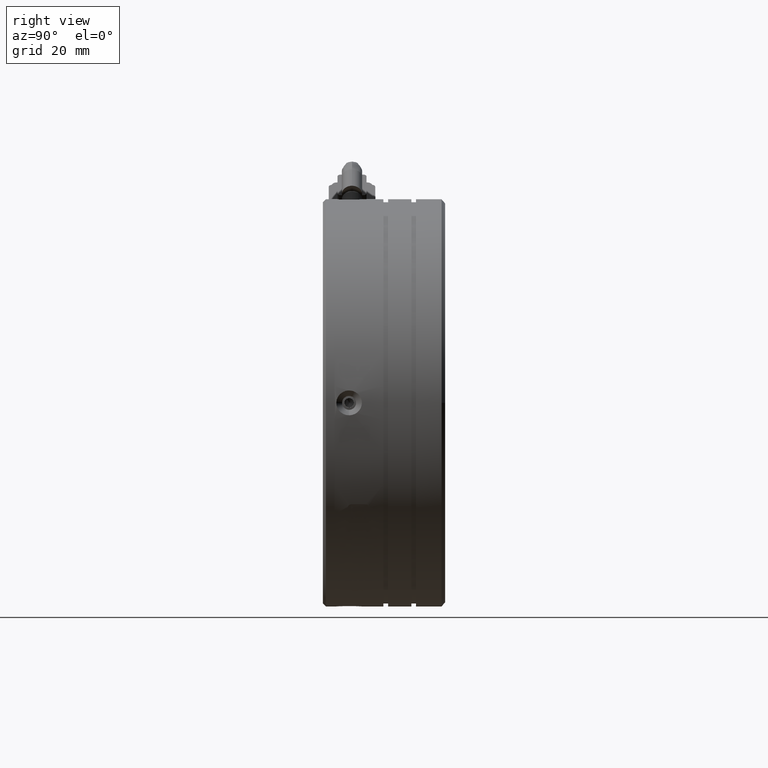
[diagram: clean part render]
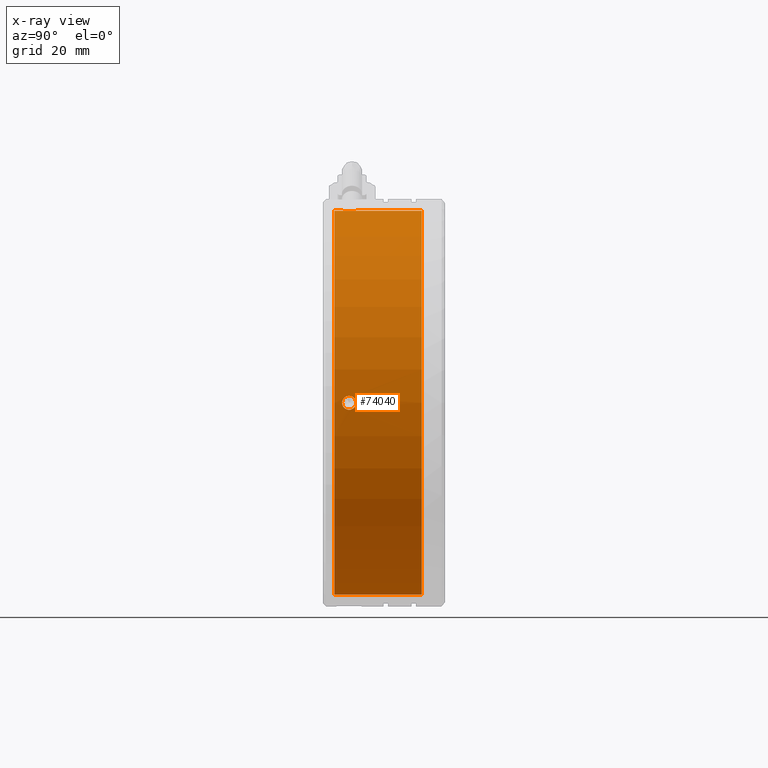
[diagram: x-ray — body ghosted, one internal face saturated and labeled with its STEP entity id]
A machine part, right view, then the same camera in x-ray: the body is ghosted and one INTERNAL B-rep face — a face not visible from any outside direction — is saturated and labeled: STEP entity #74040.
In plain terms, the highlighted cylindrical surface (partial cylindrical patch) has radius 33 mm, axis along (-0, -1, -0).
Its self-contained STEP definition (entity closure, byte-faithful):
#239 = CARTESIAN_POINT ( 'NONE',  ( 30.26327966126859100, 0.4931344724992205400, -1.168785520655095700 ) ) ;
#304 = CARTESIAN_POINT ( 'NONE',  ( 30.26210358039565000, 0.8072713351086959800, 1.200000000000092300 ) ) ;
#530 = CARTESIAN_POINT ( 'NONE',  ( 30.26328206748696200, 0.4928482414054432000, 1.168722034054881400 ) ) ;
#595 = CARTESIAN_POINT ( 'NONE',  ( 30.27591459152081700, 1.768328481776676000, -0.7358360129737872000 ) ) ;
#1208 = CARTESIAN_POINT ( 'NONE',  ( -2.716071020391490200, 13.30727133510869800, -1.131636017531745300E-015 ) ) ;
#1279 = CARTESIAN_POINT ( 'NONE',  ( -2.716071020391486200, -13.32601881678534500, 33.00000000000003600 ) ) ;
#2878 = CARTESIAN_POINT ( 'NONE',  ( -2.400116378680400100, 1.975421891839071600, -32.99880286288897900 ) ) ;
#4090 = ORIENTED_EDGE ( 'NONE', *, *, #42616, .F. ) ;
#5450 = ORIENTED_EDGE ( 'NONE', *, *, #56728, .T. ) ;
#5659 = CARTESIAN_POINT ( 'NONE',  ( -2.557591869066220300, 2.007271335108683300, 33.00000000000003600 ) ) ;
#6030 = CARTESIAN_POINT ( 'NONE',  ( -1.667743459670195400, 0.2027778442646973000, -32.98339889650164700 ) ) ;
#6638 = EDGE_CURVE ( 'NONE', #30974, #55099, #83554, .T. ) ;
#6996 = CARTESIAN_POINT ( 'NONE',  ( 30.27017137514495800, 0.06941566001254349800, -0.9592045269286991700 ) ) ;
#7060 = CARTESIAN_POINT ( 'NONE',  ( 30.26210358039565700, 0.9658260916596472800, 1.200000000000092500 ) ) ;
#7278 = CARTESIAN_POINT ( 'NONE',  ( 30.26210358039565000, 0.8072713351086959800, 1.200000000000092300 ) ) ;
#7355 = CARTESIAN_POINT ( 'NONE',  ( 30.26733570743430200, 1.412458215402521800, -1.048103961760978000 ) ) ;
#7953 = DIRECTION ( 'NONE',  ( 0.0000000000000000000, 0.0000000000000000000, -1.000000000000000000 ) ) ;
#9040 = EDGE_CURVE ( 'NONE', #12694, #35938, #22865, .T. ) ;
#9361 = ORIENTED_EDGE ( 'NONE', *, *, #53622, .F. ) ;
#9578 = CARTESIAN_POINT ( 'NONE',  ( -2.716071020391490200, 2.007271335108682800, -33.00000000000003600 ) ) ;
#9597 = CARTESIAN_POINT ( 'NONE',  ( -1.516071020391503500, 0.8072713351086959800, 32.97817460078714900 ) ) ;
#10244 = FACE_OUTER_BOUND ( 'NONE', #56417, .T. ) ;
#12694 = VERTEX_POINT ( 'NONE', #85382 ) ;
#12786 = CARTESIAN_POINT ( 'NONE',  ( -1.516071020391504000, 0.6487923480182277200, -32.97817460078713500 ) ) ;
#13155 = B_SPLINE_CURVE_WITH_KNOTS ( 'NONE', 3,
 ( #52544, #5659, #59260, #19077, #66000, #25874, #72756, #32582, #79547, #39364 ),
 .UNSPECIFIED., .F., .F.,
 ( 4, 2, 2, 2, 4 ),
 ( 0.0000000000000000000, 0.0004686863137177276400, 0.0009373726274354557100, 0.001406058941153183800, 0.001874745254870911800 ),
 .UNSPECIFIED. ) ;
#13266 = CARTESIAN_POINT ( 'NONE',  ( -1.516071020391503500, 0.8072713351086959800, 32.97817460078714900 ) ) ;
#13613 = VECTOR ( 'NONE', #73142, 1000.000000000000000 ) ;
#13730 = CARTESIAN_POINT ( 'NONE',  ( 30.27871735660705700, -0.2413654639475856500, -0.6039761071244909000 ) ) ;
#13793 = CARTESIAN_POINT ( 'NONE',  ( 30.26732810195379700, 1.412026036177376900, 1.048338358202600500 ) ) ;
#14069 = CARTESIAN_POINT ( 'NONE',  ( 30.26210358039565300, 0.9658260328664218800, -1.199999999999962000 ) ) ;
#14361 = EDGE_CURVE ( 'NONE', #61181, #58754, #66506, .T. ) ;
#16302 = CARTESIAN_POINT ( 'NONE',  ( -1.547254035345357200, 0.4932874447166579200, 32.97934946666536100 ) ) ;
#19077 = CARTESIAN_POINT ( 'NONE',  ( -2.111579069174067700, 1.855750477904867200, 32.99478280426479400 ) ) ;
#19255 = CARTESIAN_POINT ( 'NONE',  ( -2.716071020391490200, -13.32601881678534500, -33.00000000000003600 ) ) ;
#20469 = CARTESIAN_POINT ( 'NONE',  ( 30.28392509849339800, -0.3926219341999274100, -0.1573320265075288700 ) ) ;
#20527 = CARTESIAN_POINT ( 'NONE',  ( 30.27586556915116500, 1.766502041763538400, 0.7378216404815718400 ) ) ;
#20660 = CARTESIAN_POINT ( 'NONE',  ( -2.716071020391490200, -1.692728664891304500, -33.00000000000003600 ) ) ;
#21029 = CIRCLE ( 'NONE', #83221, 33.00000000000003600 ) ;
#21602 = B_SPLINE_CURVE_WITH_KNOTS ( 'NONE', 3,
 ( #73828, #26943, #239, #47159, #6996, #53892, #13730, #60598, #20469, #67335, #27237, #74110, #33918, #80870, #40698, #530, #47452, #7278 ),
 .UNSPECIFIED., .F., .F.,
 ( 4, 2, 2, 2, 2, 2, 2, 2, 4 ),
 ( 0.003751279220462299200, 0.004220189296893438700, 0.004689099373324577400, 0.005158009449755716900, 0.005626919526186855600, 0.006095829602617994200, 0.006564739679049134600, 0.007033649755480273300, 0.007502559831911412800 ),
 .UNSPECIFIED. ) ;
#22275 = ORIENTED_EDGE ( 'NONE', *, *, #68920, .F. ) ;
#22865 = B_SPLINE_CURVE_WITH_KNOTS ( 'NONE', 3,
 ( #304, #7060, #47224, #13793, #60651, #20527, #67412, #27295, #74168, #33982, #80947, #40756, #595, #47511, #7355, #54254, #14069, #60945 ),
 .UNSPECIFIED., .F., .F.,
 ( 4, 2, 2, 2, 2, 2, 2, 2, 4 ),
 ( 0.0000000000000000000, 0.0004689099025577869600, 0.0009378198051155739300, 0.001406729707673361100, 0.001875639610231148300, 0.002344549512788935900, 0.002813459415346723500, 0.003282369317904511600, 0.003751279220462299200 ),
 .UNSPECIFIED. ) ;
#23056 = CARTESIAN_POINT ( 'NONE',  ( -1.756641551290326800, 0.06972329556116278700, 32.98623554602826900 ) ) ;
#24467 = B_SPLINE_CURVE_WITH_KNOTS ( 'NONE', 3,
 ( #9597, #49748, #16302, #63250, #23056, #69945, #29834, #76716, #36548, #83453 ),
 .UNSPECIFIED., .F., .F.,
 ( 4, 2, 2, 2, 4 ),
 ( 0.001874745254870911800, 0.002343432058373084500, 0.002812118861875257100, 0.003280805665377430200, 0.003749492468879603200 ),
 .UNSPECIFIED. ) ;
#25874 = CARTESIAN_POINT ( 'NONE',  ( -1.757166126515263800, 1.545501260155894400, 32.98625106334230100 ) ) ;
#26329 = ORIENTED_EDGE ( 'NONE', *, *, #62849, .F. ) ;
#26943 = CARTESIAN_POINT ( 'NONE',  ( 30.26210358039567400, 0.6487165785571291600, -1.199999999999799700 ) ) ;
#27217 = CARTESIAN_POINT ( 'NONE',  ( -2.716071020391486200, 13.30727133510869800, 33.00000000000003600 ) ) ;
#27237 = CARTESIAN_POINT ( 'NONE',  ( 30.28276453478510900, -0.3618086908596832000, 0.3129921246376338700 ) ) ;
#27295 = CARTESIAN_POINT ( 'NONE',  ( 30.28273918997904300, 1.975626757688306900, 0.3152330579765894600 ) ) ;
#28263 = DIRECTION ( 'NONE',  ( -0.0000000000000000000, -1.000000000000000000, -0.0000000000000000000 ) ) ;
#29545 = CARTESIAN_POINT ( 'NONE',  ( -1.547254035345357200, 1.121255225500734600, -32.97934946666536100 ) ) ;
#29834 = CARTESIAN_POINT ( 'NONE',  ( -2.111577504616401100, -0.2410562130336494100, 32.99477845521643400 ) ) ;
#30974 = VERTEX_POINT ( 'NONE', #76152 ) ;
#31928 = VERTEX_POINT ( 'NONE', #13266 ) ;
#32582 = CARTESIAN_POINT ( 'NONE',  ( -1.547920464128700100, 1.123225972586245000, 32.97937260952999600 ) ) ;
#32661 = CARTESIAN_POINT ( 'NONE',  ( -2.716071020391490200, -0.3927286648912906600, -33.00000000000003600 ) ) ;
#33779 = VERTEX_POINT ( 'NONE', #41268 ) ;
#33918 = CARTESIAN_POINT ( 'NONE',  ( 30.27591459152080600, -0.1537858115592753700, 0.7358360129740064700 ) ) ;
#33982 = CARTESIAN_POINT ( 'NONE',  ( 30.28393284053778000, 2.007377510687136100, -0.1556996841216925800 ) ) ;
#34661 = DIRECTION ( 'NONE',  ( -0.0000000000000000000, -1.000000000000000000, -0.0000000000000000000 ) ) ;
#35376 = CYLINDRICAL_SURFACE ( 'NONE', #61180, 33.00000000000003600 ) ;
#35938 = VERTEX_POINT ( 'NONE', #75230 ) ;
#35964 = CARTESIAN_POINT ( 'NONE',  ( -1.516071020391503100, 0.9657504878121914200, -32.97817460078713500 ) ) ;
#36259 = CARTESIAN_POINT ( 'NONE',  ( -1.756641551290327500, 1.544819374656230400, -32.98623554602826900 ) ) ;
#36548 = CARTESIAN_POINT ( 'NONE',  ( -2.557592034282567100, -0.3927286648912909900, 33.00000000000003600 ) ) ;
#38394 = DIRECTION ( 'NONE',  ( 0.0000000000000000000, 1.000000000000000000, 0.0000000000000000000 ) ) ;
#39364 = CARTESIAN_POINT ( 'NONE',  ( -1.516071020391503500, 0.8072713351086959800, 32.97817460078714900 ) ) ;
#39451 = CARTESIAN_POINT ( 'NONE',  ( -2.111579069173807400, -0.2412078076873198400, -32.99478280426479400 ) ) ;
#40698 = CARTESIAN_POINT ( 'NONE',  ( 30.26733570743430600, 0.2020844548148637000, 1.048103961761187100 ) ) ;
#40756 = CARTESIAN_POINT ( 'NONE',  ( 30.27872891275779200, 1.856281696391340400, -0.6035639478339234200 ) ) ;
#41131 = EDGE_CURVE ( 'NONE', #61181, #43183, #69770, .T. ) ;
#41268 = CARTESIAN_POINT ( 'NONE',  ( -2.716071020391486200, -0.3927286648912906600, 33.00000000000003600 ) ) ;
#41984 = ORIENTED_EDGE ( 'NONE', *, *, #73560, .F. ) ;
#42616 = EDGE_CURVE ( 'NONE', #51731, #59337, #21029, .T. ) ;
#43016 = CARTESIAN_POINT ( 'NONE',  ( -2.111577504616403400, 1.855598883251043100, -32.99477845521643400 ) ) ;
#43046 = CARTESIAN_POINT ( 'NONE',  ( -1.516071020391503500, 0.8072713351086959800, -32.97817460078714900 ) ) ;
#43183 = VERTEX_POINT ( 'NONE', #43742 ) ;
#43208 = CARTESIAN_POINT ( 'NONE',  ( -2.716071020391490200, 13.30727133510869800, -33.00000000000003600 ) ) ;
#43742 = CARTESIAN_POINT ( 'NONE',  ( -2.716071020391490200, 2.007271335108682800, -33.00000000000003600 ) ) ;
#43829 = FACE_BOUND ( 'NONE', #60503, .T. ) ;
#44392 = CARTESIAN_POINT ( 'NONE',  ( -2.716071020391486200, -1.692728664891304500, 33.00000000000003600 ) ) ;
#46190 = CARTESIAN_POINT ( 'NONE',  ( -1.757166126515150800, 0.06904141006165227800, -32.98625106334230100 ) ) ;
#47159 = CARTESIAN_POINT ( 'NONE',  ( 30.26732810195380100, 0.2025166340400023600, -1.048338358202383100 ) ) ;
#47224 = CARTESIAN_POINT ( 'NONE',  ( 30.26327966126859100, 1.121408197718174900, 1.168785520655304800 ) ) ;
#47452 = CARTESIAN_POINT ( 'NONE',  ( 30.26210358039565000, 0.6487165197651136900, 1.200000000000092300 ) ) ;
#47511 = CARTESIAN_POINT ( 'NONE',  ( 30.27015327894251600, 1.544502471527683800, -0.9599873585860805300 ) ) ;
#48110 = DIRECTION ( 'NONE',  ( -0.0000000000000000000, -1.000000000000000000, -0.0000000000000000000 ) ) ;
#48173 = CARTESIAN_POINT ( 'NONE',  ( -2.716071020391490200, -13.32601881678534500, -33.00000000000003600 ) ) ;
#49737 = CARTESIAN_POINT ( 'NONE',  ( -2.557592034282572000, 2.007271335108683300, -33.00000000000003600 ) ) ;
#49748 = CARTESIAN_POINT ( 'NONE',  ( -1.516071020391503300, 0.6487921824051992000, 32.97817460078713500 ) ) ;
#50908 = ORIENTED_EDGE ( 'NONE', *, *, #67111, .F. ) ;
#51731 = VERTEX_POINT ( 'NONE', #44392 ) ;
#52544 = CARTESIAN_POINT ( 'NONE',  ( -2.716071020391486200, 2.007271335108682800, 33.00000000000003600 ) ) ;
#52931 = CARTESIAN_POINT ( 'NONE',  ( -1.547920464128685200, 0.4913166976312227700, -32.97937260952999600 ) ) ;
#53028 = ORIENTED_EDGE ( 'NONE', *, *, #69134, .F. ) ;
#53622 = EDGE_CURVE ( 'NONE', #31928, #33779, #24467, .T. ) ;
#53892 = CARTESIAN_POINT ( 'NONE',  ( 30.27586556915116800, -0.1519593715461540200, -0.7378216404813510200 ) ) ;
#54254 = CARTESIAN_POINT ( 'NONE',  ( 30.26328206748696600, 1.121694428811960100, -1.168722034054665300 ) ) ;
#54520 = ORIENTED_EDGE ( 'NONE', *, *, #9040, .F. ) ;
#55099 = VERTEX_POINT ( 'NONE', #43046 ) ;
#56417 = EDGE_LOOP ( 'NONE', ( #26329, #64994, #80316, #53028, #83338, #5450, #4090, #41984, #9361, #50908 ) ) ;
#56728 = EDGE_CURVE ( 'NONE', #30974, #59337, #75604, .T. ) ;
#57934 = VERTEX_POINT ( 'NONE', #82773 ) ;
#58754 = VERTEX_POINT ( 'NONE', #27217 ) ;
#59260 = CARTESIAN_POINT ( 'NONE',  ( -2.402087126540426900, 1.976088320939825000, 32.99882599326977600 ) ) ;
#59337 = VERTEX_POINT ( 'NONE', #20660 ) ;
#59583 = CARTESIAN_POINT ( 'NONE',  ( -2.716071020391490200, -13.32601881678534500, -1.131636017531745300E-015 ) ) ;
#59636 = CARTESIAN_POINT ( 'NONE',  ( -1.516071020391503500, 0.8072713351086959800, -32.97817460078714900 ) ) ;
#60156 = DIRECTION ( 'NONE',  ( 0.0000000000000000000, 0.0000000000000000000, -1.000000000000000000 ) ) ;
#60503 = EDGE_LOOP ( 'NONE', ( #54520, #22275 ) ) ;
#60598 = CARTESIAN_POINT ( 'NONE',  ( 30.28273918997905400, -0.3610840874709174100, -0.3152330579763694700 ) ) ;
#60651 = CARTESIAN_POINT ( 'NONE',  ( 30.27017137514495800, 1.545127010204846200, 0.9592045269289118900 ) ) ;
#60945 = CARTESIAN_POINT ( 'NONE',  ( 30.26210358039565700, 0.8072713351086960900, -1.199999999999881200 ) ) ;
#61181 = VERTEX_POINT ( 'NONE', #43208 ) ;
#61180 = AXIS2_PLACEMENT_3D ( 'NONE', #59583, #73378, #60156 ) ;
#61510 = VECTOR ( 'NONE', #28263, 1000.000000000000000 ) ;
#62647 = B_SPLINE_CURVE_WITH_KNOTS ( 'NONE', 3,
 ( #76125, #35964, #29545, #76416, #36259, #83154, #43016, #2878, #49737, #9578 ),
 .UNSPECIFIED., .F., .F.,
 ( 4, 2, 2, 2, 4 ),
 ( 0.001874745254870686800, 0.002343432058372861100, 0.002812118861875035500, 0.003280805665377210300, 0.003749492468879384600 ),
 .UNSPECIFIED. ) ;
#62849 = EDGE_CURVE ( 'NONE', #58754, #57934, #79408, .T. ) ;
#63250 = CARTESIAN_POINT ( 'NONE',  ( -1.667591864840332700, 0.2027794093290507800, 32.98339454709515900 ) ) ;
#64994 = ORIENTED_EDGE ( 'NONE', *, *, #14361, .F. ) ;
#66000 = CARTESIAN_POINT ( 'NONE',  ( -1.978522949521982300, 1.766700780608278600, 32.99194266260335000 ) ) ;
#66168 = DIRECTION ( 'NONE',  ( -0.0000000000000000000, -1.000000000000000000, -0.0000000000000000000 ) ) ;
#66394 = CARTESIAN_POINT ( 'NONE',  ( -2.716071020391486200, -13.32601881678534500, 33.00000000000003600 ) ) ;
#66506 = CIRCLE ( 'NONE', #69131, 33.00000000000003600 ) ;
#67079 = LINE ( 'NONE', #66394, #13613 ) ;
#67111 = EDGE_CURVE ( 'NONE', #57934, #31928, #13155, .T. ) ;
#67335 = CARTESIAN_POINT ( 'NONE',  ( 30.28393284053778300, -0.3928348404697431000, 0.1556996841219060500 ) ) ;
#67412 = CARTESIAN_POINT ( 'NONE',  ( 30.27871735660706800, 1.855908134164973500, 0.6039761071247099500 ) ) ;
#68920 = EDGE_CURVE ( 'NONE', #35938, #12694, #21602, .T. ) ;
#69131 = AXIS2_PLACEMENT_3D ( 'NONE', #1208, #48110, #7953 ) ;
#69134 = EDGE_CURVE ( 'NONE', #55099, #43183, #62647, .T. ) ;
#69770 = LINE ( 'NONE', #19255, #85468 ) ;
#69945 = CARTESIAN_POINT ( 'NONE',  ( -1.977841059906339600, -0.1516335310079813800, 32.99192714785967700 ) ) ;
#72756 = CARTESIAN_POINT ( 'NONE',  ( -1.667743459670267400, 1.411764825952828600, 32.98339889650164700 ) ) ;
#72832 = CARTESIAN_POINT ( 'NONE',  ( -2.557591869066032400, -0.3927286648912612400, -33.00000000000002800 ) ) ;
#73142 = DIRECTION ( 'NONE',  ( -0.0000000000000000000, -1.000000000000000000, -0.0000000000000000000 ) ) ;
#73378 = DIRECTION ( 'NONE',  ( -0.0000000000000000000, -1.000000000000000000, -0.0000000000000000000 ) ) ;
#73512 = VECTOR ( 'NONE', #34661, 1000.000000000000000 ) ;
#73560 = EDGE_CURVE ( 'NONE', #33779, #51731, #67079, .T. ) ;
#73828 = CARTESIAN_POINT ( 'NONE',  ( 30.26210358039565700, 0.8072713351086960900, -1.199999999999881200 ) ) ;
#74040 = ADVANCED_FACE ( 'NONE', ( #10244, #43829 ), #35376, .F. ) ;
#74110 = CARTESIAN_POINT ( 'NONE',  ( 30.27872891275779600, -0.2417390261739501000, 0.6035639478341301400 ) ) ;
#74168 = CARTESIAN_POINT ( 'NONE',  ( 30.28392509849338400, 2.007164604417318400, 0.1573320265077511900 ) ) ;
#75230 = CARTESIAN_POINT ( 'NONE',  ( 30.26210358039565700, 0.8072713351086960900, -1.199999999999881200 ) ) ;
#75604 = LINE ( 'NONE', #48173, #73512 ) ;
#76125 = CARTESIAN_POINT ( 'NONE',  ( -1.516071020391503500, 0.8072713351086959800, -32.97817460078714900 ) ) ;
#76152 = CARTESIAN_POINT ( 'NONE',  ( -2.716071020391490200, -0.3927286648912906600, -33.00000000000003600 ) ) ;
#76416 = CARTESIAN_POINT ( 'NONE',  ( -1.667591864840333200, 1.411763260888341900, -32.98339454709515900 ) ) ;
#76716 = CARTESIAN_POINT ( 'NONE',  ( -2.400116378680397000, -0.3608792216216789000, 32.99880286288897900 ) ) ;
#78537 = CARTESIAN_POINT ( 'NONE',  ( -2.716071020391490200, -1.692728664891304500, -1.131636017531745300E-015 ) ) ;
#79408 = LINE ( 'NONE', #1279, #61510 ) ;
#79547 = CARTESIAN_POINT ( 'NONE',  ( -1.516071020391504000, 0.9657503221992012100, 32.97817460078714200 ) ) ;
#79617 = CARTESIAN_POINT ( 'NONE',  ( -2.402087126540059600, -0.3615456507223291400, -32.99882599326976900 ) ) ;
#80316 = ORIENTED_EDGE ( 'NONE', *, *, #41131, .T. ) ;
#80870 = CARTESIAN_POINT ( 'NONE',  ( 30.27015327894250500, 0.07004019868969724200, 0.9599873585862803700 ) ) ;
#80947 = CARTESIAN_POINT ( 'NONE',  ( 30.28276453478511600, 1.976351361077079500, -0.3129921246374106600 ) ) ;
#82773 = CARTESIAN_POINT ( 'NONE',  ( -2.716071020391486200, 2.007271335108682800, 33.00000000000003600 ) ) ;
#83154 = CARTESIAN_POINT ( 'NONE',  ( -1.977841059906341800, 1.766176201225374300, -32.99192714785967700 ) ) ;
#83221 = AXIS2_PLACEMENT_3D ( 'NONE', #78537, #38394, #85222 ) ;
#83338 = ORIENTED_EDGE ( 'NONE', *, *, #6638, .F. ) ;
#83453 = CARTESIAN_POINT ( 'NONE',  ( -2.716071020391486200, -0.3927286648912906600, 33.00000000000003600 ) ) ;
#83554 = B_SPLINE_CURVE_WITH_KNOTS ( 'NONE', 3,
 ( #32661, #72832, #79617, #39451, #86281, #46190, #6030, #52931, #12786, #59636 ),
 .UNSPECIFIED., .F., .F.,
 ( 4, 2, 2, 2, 4 ),
 ( 2.261188303997093400E-016, 0.0004686863137178412600, 0.0009373726274354564700, 0.001406058941153071700, 0.001874745254870686800 ),
 .UNSPECIFIED. ) ;
#85222 = DIRECTION ( 'NONE',  ( 0.0000000000000000000, 0.0000000000000000000, -1.000000000000000000 ) ) ;
#85382 = CARTESIAN_POINT ( 'NONE',  ( 30.26210358039565000, 0.8072713351086959800, 1.200000000000092300 ) ) ;
#85468 = VECTOR ( 'NONE', #66168, 1000.000000000000000 ) ;
#86281 = CARTESIAN_POINT ( 'NONE',  ( -1.978522949521775300, -0.1521581103907211400, -32.99194266260336400 ) ) ;